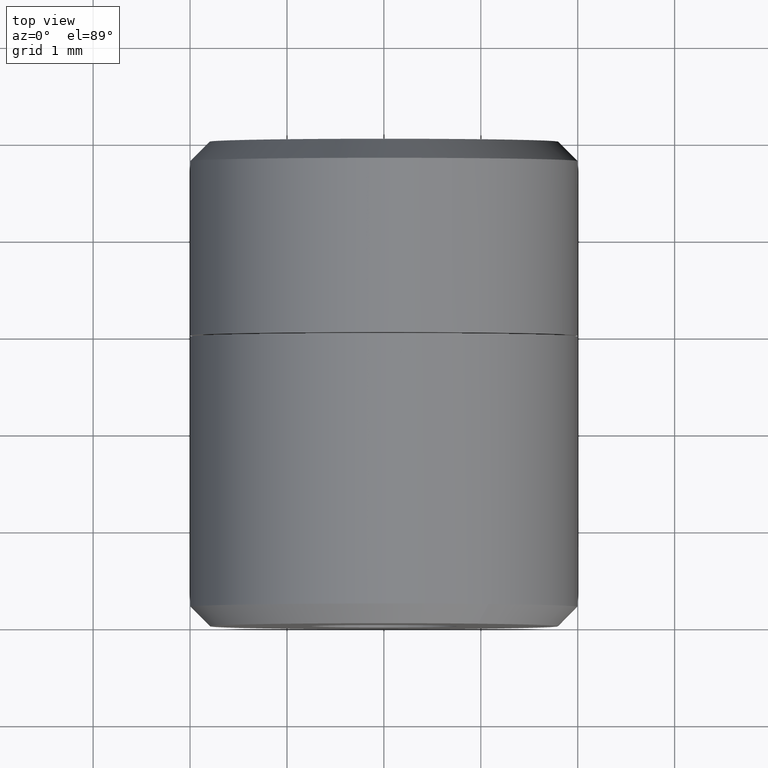
[diagram: clean part render]
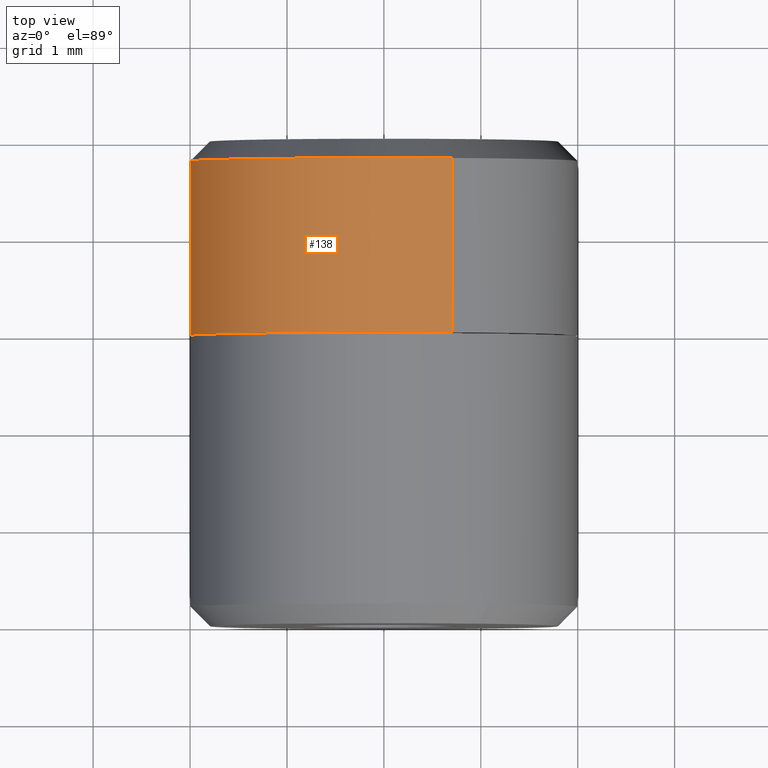
[diagram: same view with one face highlighted and labeled with its STEP entity id]
A machine part, top view. The second image highlights one B-rep face of the part: STEP entity #138.
In plain terms, the highlighted face is a freeform B-spline surface patch.
Its self-contained STEP definition (entity closure, byte-faithful):
#44=CARTESIAN_POINT('',(0.703235948783144,4.845003075000000,1.872287157553307));
#45=CARTESIAN_POINT('',(0.421978903430817,4.845003075000000,1.977928038730294));
#46=CARTESIAN_POINT('',(0.122097079069714,4.845003075000000,1.996269596843726));
#47=CARTESIAN_POINT('',(-1.874172517774020,4.845003074999999,2.118366675913440));
#48=CARTESIAN_POINT('',(-1.996269596843733,4.845003075000000,0.122097079069707));
#49=CARTESIAN_POINT('',(0.703235948783144,2.953874923125000,1.872287157553307));
#50=CARTESIAN_POINT('',(0.421978903430817,2.953874923124999,1.977928038730294));
#51=CARTESIAN_POINT('',(0.122097079069714,2.953874923124999,1.996269596843726));
#52=CARTESIAN_POINT('',(-1.874172517774020,2.953874923124999,2.118366675913440));
#53=CARTESIAN_POINT('',(-1.996269596843733,2.953874923124999,0.122097079069707));
#61=(BOUNDED_SURFACE()B_SPLINE_SURFACE(2,1,((#44,#49),(#45,#50),(#46,#51),(#47,#52),(#48,#53)),.UNSPECIFIED.,.F.,.F.,.U.)B_SPLINE_SURFACE_WITH_KNOTS((3,2,3),(2,2),(0.0,0.662741699796952,3.976450198781711),(0.0,1.0),.UNSPECIFIED.)GEOMETRIC_REPRESENTATION_ITEM()RATIONAL_B_SPLINE_SURFACE(((0.906274169979695,0.906274169979695),(0.941421356237309,0.941421356237309),(1.0,1.0),(0.707106781186548,0.707106781186548),(1.0,1.0)))REPRESENTATION_ITEM('')SURFACE());
#62=CARTESIAN_POINT('',(0.703235474031004,4.800003000000000,1.872287335871314));
#63=VERTEX_POINT('',#62);
#64=CARTESIAN_POINT('',(0.0,4.800002999999999,1.999999999999993));
#65=VERTEX_POINT('',#64);
#66=CARTESIAN_POINT('',(0.703235474031004,4.800003000000000,1.872287335871314));
#67=CARTESIAN_POINT('',(0.363214248271586,4.800002999999999,1.999999999999993));
#68=CARTESIAN_POINT('',(0.0,4.800002999999999,1.999999999999993));
#76=(BOUNDED_CURVE()B_SPLINE_CURVE(2,(#66,#67,#68),.UNSPECIFIED.,.F.,.U.)B_SPLINE_CURVE_WITH_KNOTS((3,3),(0.440284251000991,0.500000000000000),.UNSPECIFIED.)CURVE()GEOMETRIC_REPRESENTATION_ITEM()RATIONAL_B_SPLINE_CURVE((0.893499652661759,0.930038648247296,1.0))REPRESENTATION_ITEM(''));
#77=EDGE_CURVE('',#63,#65,#76,.T.);
#78=ORIENTED_EDGE('',*,*,#77,.T.);
#79=CARTESIAN_POINT('',(-1.996269596843765,4.800002999999885,0.122097079070154));
#80=VERTEX_POINT('',#79);
#81=CARTESIAN_POINT('',(0.0,4.800002999999999,1.999999999999993));
#82=CARTESIAN_POINT('',(-1.881412133809702,4.800002999999999,1.999999999999993));
#83=CARTESIAN_POINT('',(-1.996269596843766,4.800002999999885,0.122097079070154));
#91=(BOUNDED_CURVE()B_SPLINE_CURVE(2,(#81,#82,#83),.UNSPECIFIED.,.F.,.U.)B_SPLINE_CURVE_WITH_KNOTS((3,3),(0.500000000000000,0.739332962241814),.UNSPECIFIED.)CURVE()GEOMETRIC_REPRESENTATION_ITEM()RATIONAL_B_SPLINE_CURVE((1.0,0.719603993283347,0.976072041672871))REPRESENTATION_ITEM(''));
#92=EDGE_CURVE('',#65,#80,#91,.T.);
#93=ORIENTED_EDGE('',*,*,#92,.T.);
#94=CARTESIAN_POINT('',(-1.996269638693471,3.0,0.122096394828707));
#95=VERTEX_POINT('',#94);
#96=CARTESIAN_POINT('',(-1.996269596843765,4.800002999999885,0.122097079070154));
#97=CARTESIAN_POINT('',(-1.996269638693471,3.0,0.122096394828707));
#98=QUASI_UNIFORM_CURVE('',1,(#96,#97),.UNSPECIFIED.,.F.,.U.);
#99=EDGE_CURVE('',#80,#95,#98,.T.);
#100=ORIENTED_EDGE('',*,*,#99,.T.);
#101=CARTESIAN_POINT('',(0.0,3.0,1.999999999999993));
#102=VERTEX_POINT('',#101);
#103=CARTESIAN_POINT('',(0.0,3.0,1.999999999999993));
#104=CARTESIAN_POINT('',(-1.881413425966872,3.0,1.999999999999994));
#105=CARTESIAN_POINT('',(-1.996269638693471,3.0,0.122096394828706));
#113=(BOUNDED_CURVE()B_SPLINE_CURVE(2,(#103,#104,#105),.UNSPECIFIED.,.F.,.U.)B_SPLINE_CURVE_WITH_KNOTS((3,3),(0.500000000000000,0.739333080526194),.UNSPECIFIED.)CURVE()GEOMETRIC_REPRESENTATION_ITEM()RATIONAL_B_SPLINE_CURVE((1.0,0.719603854704575,0.976072295178945))REPRESENTATION_ITEM(''));
#114=EDGE_CURVE('',#102,#95,#113,.T.);
#115=ORIENTED_EDGE('',*,*,#114,.F.);
#116=CARTESIAN_POINT('',(0.703235363436929,3.0,1.872287377410666));
#117=VERTEX_POINT('',#116);
#118=CARTESIAN_POINT('',(0.703235363436929,3.0,1.872287377410667));
#119=CARTESIAN_POINT('',(0.363214126237348,3.000000000000000,1.999999999999993));
#120=CARTESIAN_POINT('',(0.0,3.0,1.999999999999993));
#128=(BOUNDED_CURVE()B_SPLINE_CURVE(2,(#118,#119,#120),.UNSPECIFIED.,.F.,.U.)B_SPLINE_CURVE_WITH_KNOTS((3,3),(0.440284269660865,0.500000000000000),.UNSPECIFIED.)CURVE()GEOMETRIC_REPRESENTATION_ITEM()RATIONAL_B_SPLINE_CURVE((0.893499675497047,0.930038670108699,1.0))REPRESENTATION_ITEM(''));
#129=EDGE_CURVE('',#117,#102,#128,.T.);
#130=ORIENTED_EDGE('',*,*,#129,.F.);
#131=CARTESIAN_POINT('',(0.703235474031004,4.800003000000000,1.872287335871314));
#132=CARTESIAN_POINT('',(0.703235363436929,3.0,1.872287377410666));
#133=QUASI_UNIFORM_CURVE('',1,(#131,#132),.UNSPECIFIED.,.F.,.U.);
#134=EDGE_CURVE('',#63,#117,#133,.T.);
#135=ORIENTED_EDGE('',*,*,#134,.F.);
#136=EDGE_LOOP('',(#78,#93,#100,#115,#130,#135));
#137=FACE_OUTER_BOUND('',#136,.T.);
#138=ADVANCED_FACE('',(#137),#61,.T.);